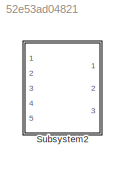
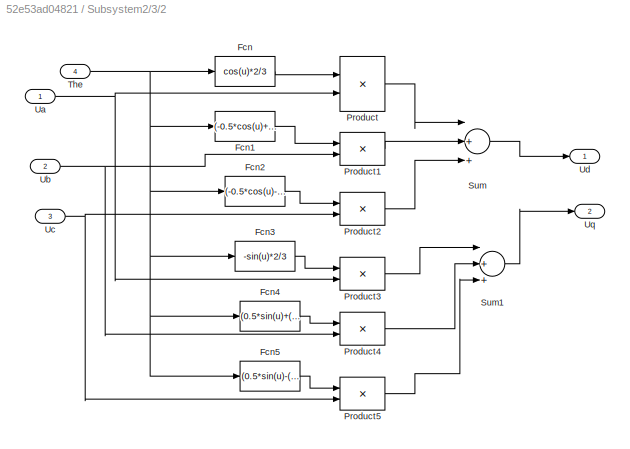
MODEL slx_52e53ad04821
KIND model
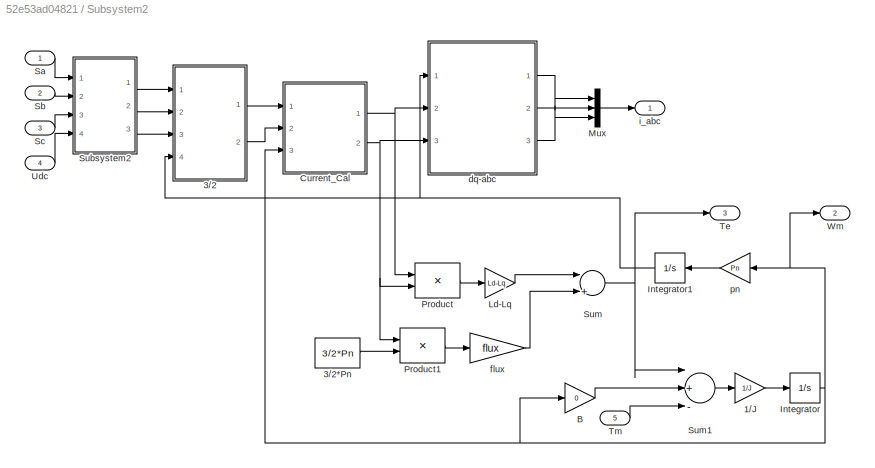
BLOCK [SubSystem] Subsystem2
  Ports = [5, 3]
  RequestExecContextInheritance = off
BLOCK [Gain] Subsystem2/1//J
  Gain = 1/J
BLOCK [SubSystem] Subsystem2/3//2
  Ports = [4, 2]
  RequestExecContextInheritance = off
BLOCK [Constant] Subsystem2/3//2*Pn
  Value = 3/2*Pn
BLOCK [Fcn] Subsystem2/3//2/Fcn
  Expr = cos(u)*2/3
BLOCK [Fcn] Subsystem2/3//2/Fcn1
  Expr = (-0.5*cos(u)+(sqrt(3)/2)*sin(u))*2/3
BLOCK [Fcn] Subsystem2/3//2/Fcn2
  Expr = (-0.5*cos(u)-(sqrt(3)/2)*sin(u))*2/3
BLOCK [Fcn] Subsystem2/3//2/Fcn3
  Expr = -sin(u)*2/3
BLOCK [Fcn] Subsystem2/3//2/Fcn4
  Expr = (0.5*sin(u)+(sqrt(3)/2)*cos(u))*2/3
BLOCK [Fcn] Subsystem2/3//2/Fcn5
  Expr = (0.5*sin(u)-(sqrt(3)/2)*cos(u))*2/3
BLOCK [Product] Subsystem2/3//2/Product
  InputSameDT = off
  Ports = [2, 1]
  RndMeth = Floor
BLOCK [Product] Subsystem2/3//2/Product1
  InputSameDT = off
  Ports = [2, 1]
  RndMeth = Floor
BLOCK [Product] Subsystem2/3//2/Product2
  InputSameDT = off
  Ports = [2, 1]
  RndMeth = Floor
BLOCK [Product] Subsystem2/3//2/Product3
  InputSameDT = off
  Ports = [2, 1]
  RndMeth = Floor
BLOCK [Product] Subsystem2/3//2/Product4
  InputSameDT = off
  Ports = [2, 1]
  RndMeth = Floor
BLOCK [Product] Subsystem2/3//2/Product5
  InputSameDT = off
  Ports = [2, 1]
  RndMeth = Floor
BLOCK [Sum] Subsystem2/3//2/Sum
  InputSameDT = off
  Inputs = |+++
  OutDataTypeStr = Inherit: Inherit via internal rule
  Ports = [3, 1]
BLOCK [Sum] Subsystem2/3//2/Sum1
  InputSameDT = off
  Inputs = |+++
  OutDataTypeStr = Inherit: Inherit via internal rule
  Ports = [3, 1]
BLOCK [Inport] Subsystem2/3//2/The
  IconDisplay = Port number
  Port = 4
BLOCK [Inport] Subsystem2/3//2/Ua
  IconDisplay = Port number
BLOCK [Inport] Subsystem2/3//2/Ub
  IconDisplay = Port number
  Port = 2
BLOCK [Inport] Subsystem2/3//2/Uc
  IconDisplay = Port number
  Port = 3
BLOCK [Outport] Subsystem2/3//2/Ud
  IconDisplay = Port number
BLOCK [Outport] Subsystem2/3//2/Uq
  IconDisplay = Port number
  Port = 2
BLOCK [Gain] Subsystem2/B
  Gain = 0
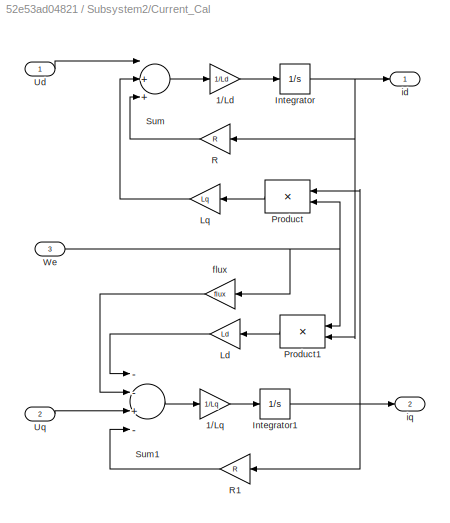
BLOCK [SubSystem] Subsystem2/Current_Cal
  Ports = [3, 2]
  RequestExecContextInheritance = off
BLOCK [Gain] Subsystem2/Current_Cal/1//Ld
  Gain = 1/Ld
BLOCK [Gain] Subsystem2/Current_Cal/1//Lq
  Gain = 1/Lq
BLOCK [Integrator] Subsystem2/Current_Cal/Integrator
  InitialCondition = 0.01
  Ports = [1, 1]
BLOCK [Integrator] Subsystem2/Current_Cal/Integrator1
  Ports = [1, 1]
BLOCK [Gain] Subsystem2/Current_Cal/Ld
  Gain = Ld
BLOCK [Gain] Subsystem2/Current_Cal/Lq
  Gain = Lq
BLOCK [Product] Subsystem2/Current_Cal/Product
  InputSameDT = off
  Ports = [2, 1]
  RndMeth = Floor
BLOCK [Product] Subsystem2/Current_Cal/Product1
  InputSameDT = off
  Ports = [2, 1]
  RndMeth = Floor
BLOCK [Gain] Subsystem2/Current_Cal/R
  Gain = R
BLOCK [Gain] Subsystem2/Current_Cal/R1
  Gain = R
BLOCK [Sum] Subsystem2/Current_Cal/Sum
  InputSameDT = off
  Inputs = |++-
  OutDataTypeStr = Inherit: Inherit via internal rule
  Ports = [3, 1]
BLOCK [Sum] Subsystem2/Current_Cal/Sum1
  InputSameDT = off
  Inputs = --+-
  OutDataTypeStr = Inherit: Inherit via internal rule
  Ports = [4, 1]
BLOCK [Inport] Subsystem2/Current_Cal/Ud
  IconDisplay = Port number
BLOCK [Inport] Subsystem2/Current_Cal/Uq
  IconDisplay = Port number
  Port = 2
BLOCK [Inport] Subsystem2/Current_Cal/We
  IconDisplay = Port number
  Port = 3
BLOCK [Gain] Subsystem2/Current_Cal/flux
  Gain = flux
BLOCK [Outport] Subsystem2/Current_Cal/id
  IconDisplay = Port number
BLOCK [Outport] Subsystem2/Current_Cal/iq
  IconDisplay = Port number
  Port = 2
BLOCK [Integrator] Subsystem2/Integrator
  Ports = [1, 1]
BLOCK [Integrator] Subsystem2/Integrator1
  Ports = [1, 1]
BLOCK [Gain] Subsystem2/Ld-Lq
  Gain = Ld-Lq
BLOCK [Mux] Subsystem2/Mux
  DisplayOption = bar
  Inputs = 3
  Ports = [3, 1]
BLOCK [Product] Subsystem2/Product
  InputSameDT = off
  Ports = [2, 1]
  RndMeth = Floor
BLOCK [Product] Subsystem2/Product1
  InputSameDT = off
  Ports = [2, 1]
  RndMeth = Floor
BLOCK [Inport] Subsystem2/Sa
  IconDisplay = Port number
BLOCK [Inport] Subsystem2/Sb
  IconDisplay = Port number
  Port = 2
BLOCK [Inport] Subsystem2/Sc
  IconDisplay = Port number
  Port = 3
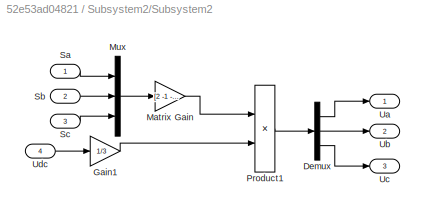
BLOCK [SubSystem] Subsystem2/Subsystem2
  Ports = [4, 3]
  RequestExecContextInheritance = off
BLOCK [Demux] Subsystem2/Subsystem2/Demux
  Outputs = 3
  Ports = [1, 3]
BLOCK [Gain] Subsystem2/Subsystem2/Gain1
  Gain = 1/3
BLOCK [Gain] Subsystem2/Subsystem2/Matrix Gain
  Gain = [2 -1 -1;-1 2 -1;-1 -1 2]
  Multiplication = Matrix(K*u)
BLOCK [Mux] Subsystem2/Subsystem2/Mux
  DisplayOption = bar
  Inputs = 3
  Ports = [3, 1]
BLOCK [Product] Subsystem2/Subsystem2/Product1
  InputSameDT = off
  Ports = [2, 1]
  RndMeth = Floor
BLOCK [Inport] Subsystem2/Subsystem2/Sa
  IconDisplay = Port number
BLOCK [Inport] Subsystem2/Subsystem2/Sb
  IconDisplay = Port number
  Port = 2
BLOCK [Inport] Subsystem2/Subsystem2/Sc
  IconDisplay = Port number
  Port = 3
BLOCK [Outport] Subsystem2/Subsystem2/Ua
  IconDisplay = Port number
BLOCK [Outport] Subsystem2/Subsystem2/Ub
  IconDisplay = Port number
  Port = 2
BLOCK [Outport] Subsystem2/Subsystem2/Uc
  IconDisplay = Port number
  Port = 3
BLOCK [Inport] Subsystem2/Subsystem2/Udc
  IconDisplay = Port number
  Port = 4
BLOCK [Sum] Subsystem2/Sum
  InputSameDT = off
  Inputs = |++
  OutDataTypeStr = Inherit: Inherit via internal rule
  Ports = [2, 1]
BLOCK [Sum] Subsystem2/Sum1
  InputSameDT = off
  Inputs = |+--
  OutDataTypeStr = Inherit: Inherit via internal rule
  Ports = [3, 1]
BLOCK [Outport] Subsystem2/Te
  IconDisplay = Port number
  Port = 3
BLOCK [Inport] Subsystem2/Tm
  IconDisplay = Port number
  Port = 5
BLOCK [Inport] Subsystem2/Udc
  IconDisplay = Port number
  Port = 4
BLOCK [Outport] Subsystem2/Wm
  IconDisplay = Port number
  Port = 2
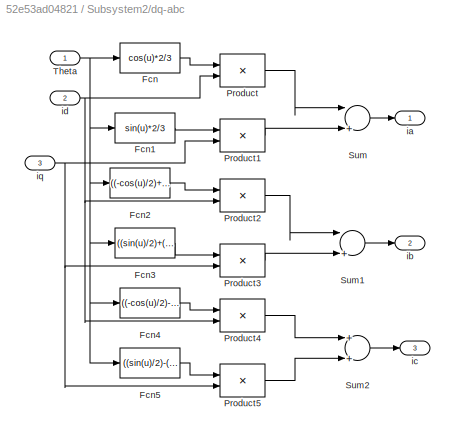
BLOCK [SubSystem] Subsystem2/dq-abc
  Ports = [3, 3]
  RequestExecContextInheritance = off
BLOCK [Fcn] Subsystem2/dq-abc/Fcn
  Expr = cos(u)*2/3
BLOCK [Fcn] Subsystem2/dq-abc/Fcn1
  Expr = sin(u)*2/3
BLOCK [Fcn] Subsystem2/dq-abc/Fcn2
  Expr = ((-cos(u)/2)+(sqrt(3)/2*sin(u)))*(2/3)
BLOCK [Fcn] Subsystem2/dq-abc/Fcn3
  Expr = ((sin(u)/2)+(sqrt(3)/2*cos(u)))*(2/3)
BLOCK [Fcn] Subsystem2/dq-abc/Fcn4
  Expr = ((-cos(u)/2)-(sqrt(3)/2*sin(u)))*(2/3)
BLOCK [Fcn] Subsystem2/dq-abc/Fcn5
  Expr = ((sin(u)/2)-(sqrt(3)/2*cos(u)))*(2/3)
BLOCK [Product] Subsystem2/dq-abc/Product
  InputSameDT = off
  Ports = [2, 1]
  RndMeth = Floor
BLOCK [Product] Subsystem2/dq-abc/Product1
  InputSameDT = off
  Ports = [2, 1]
  RndMeth = Floor
BLOCK [Product] Subsystem2/dq-abc/Product2
  InputSameDT = off
  Ports = [2, 1]
  RndMeth = Floor
BLOCK [Product] Subsystem2/dq-abc/Product3
  InputSameDT = off
  Ports = [2, 1]
  RndMeth = Floor
BLOCK [Product] Subsystem2/dq-abc/Product4
  InputSameDT = off
  Ports = [2, 1]
  RndMeth = Floor
BLOCK [Product] Subsystem2/dq-abc/Product5
  InputSameDT = off
  Ports = [2, 1]
  RndMeth = Floor
BLOCK [Sum] Subsystem2/dq-abc/Sum
  InputSameDT = off
  Inputs = |+-
  OutDataTypeStr = Inherit: Inherit via internal rule
  Ports = [2, 1]
BLOCK [Sum] Subsystem2/dq-abc/Sum1
  InputSameDT = off
  Inputs = |++
  OutDataTypeStr = Inherit: Inherit via internal rule
  Ports = [2, 1]
BLOCK [Sum] Subsystem2/dq-abc/Sum2
  InputSameDT = off
  OutDataTypeStr = Inherit: Inherit via internal rule
  Ports = [2, 1]
BLOCK [Inport] Subsystem2/dq-abc/Theta
  IconDisplay = Port number
BLOCK [Outport] Subsystem2/dq-abc/ia
  IconDisplay = Port number
BLOCK [Outport] Subsystem2/dq-abc/ib
  IconDisplay = Port number
  Port = 2
BLOCK [Outport] Subsystem2/dq-abc/ic
  IconDisplay = Port number
  Port = 3
BLOCK [Inport] Subsystem2/dq-abc/id
  IconDisplay = Port number
  Port = 2
BLOCK [Inport] Subsystem2/dq-abc/iq
  IconDisplay = Port number
  Port = 3
BLOCK [Gain] Subsystem2/flux
  Gain = flux
BLOCK [Outport] Subsystem2/i_abc
  IconDisplay = Port number
BLOCK [Gain] Subsystem2/pn
  Gain = Pn
LINE Subsystem2/1//J:1 -> Subsystem2/Integrator:1
LINE Subsystem2/3//2*Pn:1 -> Subsystem2/Product1:2
LINE Subsystem2/3//2/Fcn1:1 -> Subsystem2/3//2/Product1:1
LINE Subsystem2/3//2/Fcn2:1 -> Subsystem2/3//2/Product2:1
LINE Subsystem2/3//2/Fcn3:1 -> Subsystem2/3//2/Product3:1
LINE Subsystem2/3//2/Fcn4:1 -> Subsystem2/3//2/Product4:1
LINE Subsystem2/3//2/Fcn5:1 -> Subsystem2/3//2/Product5:1
LINE Subsystem2/3//2/Fcn:1 -> Subsystem2/3//2/Product:1
LINE Subsystem2/3//2/Product1:1 -> Subsystem2/3//2/Sum:2
LINE Subsystem2/3//2/Product2:1 -> Subsystem2/3//2/Sum:3
LINE Subsystem2/3//2/Product3:1 -> Subsystem2/3//2/Sum1:1
LINE Subsystem2/3//2/Product4:1 -> Subsystem2/3//2/Sum1:2
LINE Subsystem2/3//2/Product5:1 -> Subsystem2/3//2/Sum1:3
LINE Subsystem2/3//2/Product:1 -> Subsystem2/3//2/Sum:1
LINE Subsystem2/3//2/Sum1:1 -> Subsystem2/3//2/Uq:1
LINE Subsystem2/3//2/Sum:1 -> Subsystem2/3//2/Ud:1
NET Subsystem2/3//2/The:1 -> Subsystem2/3//2/Fcn1:1, Subsystem2/3//2/Fcn2:1, Subsystem2/3//2/Fcn3:1, Subsystem2/3//2/Fcn4:1, Subsystem2/3//2/Fcn5:1, Subsystem2/3//2/Fcn:1
NET Subsystem2/3//2/Ua:1 -> Subsystem2/3//2/Product3:2, Subsystem2/3//2/Product:2
NET Subsystem2/3//2/Ub:1 -> Subsystem2/3//2/Product1:2, Subsystem2/3//2/Product4:2
NET Subsystem2/3//2/Uc:1 -> Subsystem2/3//2/Product2:2, Subsystem2/3//2/Product5:2
LINE Subsystem2/3//2:1 -> Subsystem2/Current_Cal:1
LINE Subsystem2/3//2:2 -> Subsystem2/Current_Cal:2
LINE Subsystem2/B:1 -> Subsystem2/Sum1:2
LINE Subsystem2/Current_Cal/1//Ld:1 -> Subsystem2/Current_Cal/Integrator:1
LINE Subsystem2/Current_Cal/1//Lq:1 -> Subsystem2/Current_Cal/Integrator1:1
NET Subsystem2/Current_Cal/Integrator1:1 -> Subsystem2/Current_Cal/Product:1, Subsystem2/Current_Cal/R1:1, Subsystem2/Current_Cal/iq:1
NET Subsystem2/Current_Cal/Integrator:1 -> Subsystem2/Current_Cal/Product1:2, Subsystem2/Current_Cal/R:1, Subsystem2/Current_Cal/id:1
LINE Subsystem2/Current_Cal/Ld:1 -> Subsystem2/Current_Cal/Sum1:1
LINE Subsystem2/Current_Cal/Lq:1 -> Subsystem2/Current_Cal/Sum:2
LINE Subsystem2/Current_Cal/Product1:1 -> Subsystem2/Current_Cal/Ld:1
LINE Subsystem2/Current_Cal/Product:1 -> Subsystem2/Current_Cal/Lq:1
LINE Subsystem2/Current_Cal/R1:1 -> Subsystem2/Current_Cal/Sum1:4
LINE Subsystem2/Current_Cal/R:1 -> Subsystem2/Current_Cal/Sum:3
LINE Subsystem2/Current_Cal/Sum1:1 -> Subsystem2/Current_Cal/1//Lq:1
LINE Subsystem2/Current_Cal/Sum:1 -> Subsystem2/Current_Cal/1//Ld:1
LINE Subsystem2/Current_Cal/Ud:1 -> Subsystem2/Current_Cal/Sum:1
LINE Subsystem2/Current_Cal/Uq:1 -> Subsystem2/Current_Cal/Sum1:3
NET Subsystem2/Current_Cal/We:1 -> Subsystem2/Current_Cal/Product1:1, Subsystem2/Current_Cal/Product:2, Subsystem2/Current_Cal/flux:1
LINE Subsystem2/Current_Cal/flux:1 -> Subsystem2/Current_Cal/Sum1:2
NET Subsystem2/Current_Cal:1 -> Subsystem2/Product:1, Subsystem2/dq-abc:2
NET Subsystem2/Current_Cal:2 -> Subsystem2/Product1:1, Subsystem2/Product:2, Subsystem2/dq-abc:3
NET Subsystem2/Integrator1:1 -> Subsystem2/3//2:4, Subsystem2/dq-abc:1
NET Subsystem2/Integrator:1 -> Subsystem2/B:1, Subsystem2/Current_Cal:3, Subsystem2/Wm:1, Subsystem2/pn:1
LINE Subsystem2/Ld-Lq:1 -> Subsystem2/Sum:1
LINE Subsystem2/Mux:1 -> Subsystem2/i_abc:1
LINE Subsystem2/Product1:1 -> Subsystem2/flux:1
LINE Subsystem2/Product:1 -> Subsystem2/Ld-Lq:1
LINE Subsystem2/Sa:1 -> Subsystem2/Subsystem2:1
LINE Subsystem2/Sb:1 -> Subsystem2/Subsystem2:2
LINE Subsystem2/Sc:1 -> Subsystem2/Subsystem2:3
LINE Subsystem2/Subsystem2/Demux:1 -> Subsystem2/Subsystem2/Ua:1
LINE Subsystem2/Subsystem2/Demux:2 -> Subsystem2/Subsystem2/Ub:1
LINE Subsystem2/Subsystem2/Demux:3 -> Subsystem2/Subsystem2/Uc:1
LINE Subsystem2/Subsystem2/Gain1:1 -> Subsystem2/Subsystem2/Product1:2
LINE Subsystem2/Subsystem2/Matrix Gain:1 -> Subsystem2/Subsystem2/Product1:1
LINE Subsystem2/Subsystem2/Mux:1 -> Subsystem2/Subsystem2/Matrix Gain:1
LINE Subsystem2/Subsystem2/Product1:1 -> Subsystem2/Subsystem2/Demux:1
LINE Subsystem2/Subsystem2/Sa:1 -> Subsystem2/Subsystem2/Mux:1
LINE Subsystem2/Subsystem2/Sb:1 -> Subsystem2/Subsystem2/Mux:2
LINE Subsystem2/Subsystem2/Sc:1 -> Subsystem2/Subsystem2/Mux:3
LINE Subsystem2/Subsystem2/Udc:1 -> Subsystem2/Subsystem2/Gain1:1
LINE Subsystem2/Subsystem2:1 -> Subsystem2/3//2:1
LINE Subsystem2/Subsystem2:2 -> Subsystem2/3//2:2
LINE Subsystem2/Subsystem2:3 -> Subsystem2/3//2:3
LINE Subsystem2/Sum1:1 -> Subsystem2/1//J:1
NET Subsystem2/Sum:1 -> Subsystem2/Sum1:1, Subsystem2/Te:1
LINE Subsystem2/Tm:1 -> Subsystem2/Sum1:3
LINE Subsystem2/Udc:1 -> Subsystem2/Subsystem2:4
LINE Subsystem2/dq-abc/Fcn1:1 -> Subsystem2/dq-abc/Product1:1
LINE Subsystem2/dq-abc/Fcn2:1 -> Subsystem2/dq-abc/Product2:1
LINE Subsystem2/dq-abc/Fcn3:1 -> Subsystem2/dq-abc/Product3:1
LINE Subsystem2/dq-abc/Fcn4:1 -> Subsystem2/dq-abc/Product4:1
LINE Subsystem2/dq-abc/Fcn5:1 -> Subsystem2/dq-abc/Product5:1
LINE Subsystem2/dq-abc/Fcn:1 -> Subsystem2/dq-abc/Product:1
LINE Subsystem2/dq-abc/Product1:1 -> Subsystem2/dq-abc/Sum:2
LINE Subsystem2/dq-abc/Product2:1 -> Subsystem2/dq-abc/Sum1:1
LINE Subsystem2/dq-abc/Product3:1 -> Subsystem2/dq-abc/Sum1:2
LINE Subsystem2/dq-abc/Product4:1 -> Subsystem2/dq-abc/Sum2:1
LINE Subsystem2/dq-abc/Product5:1 -> Subsystem2/dq-abc/Sum2:2
LINE Subsystem2/dq-abc/Product:1 -> Subsystem2/dq-abc/Sum:1
LINE Subsystem2/dq-abc/Sum1:1 -> Subsystem2/dq-abc/ib:1
LINE Subsystem2/dq-abc/Sum2:1 -> Subsystem2/dq-abc/ic:1
LINE Subsystem2/dq-abc/Sum:1 -> Subsystem2/dq-abc/ia:1
NET Subsystem2/dq-abc/Theta:1 -> Subsystem2/dq-abc/Fcn1:1, Subsystem2/dq-abc/Fcn2:1, Subsystem2/dq-abc/Fcn3:1, Subsystem2/dq-abc/Fcn4:1, Subsystem2/dq-abc/Fcn5:1, Subsystem2/dq-abc/Fcn:1
NET Subsystem2/dq-abc/id:1 -> Subsystem2/dq-abc/Product2:2, Subsystem2/dq-abc/Product4:2, Subsystem2/dq-abc/Product:2
NET Subsystem2/dq-abc/iq:1 -> Subsystem2/dq-abc/Product1:2, Subsystem2/dq-abc/Product3:2, Subsystem2/dq-abc/Product5:2
LINE Subsystem2/dq-abc:1 -> Subsystem2/Mux:1
LINE Subsystem2/dq-abc:2 -> Subsystem2/Mux:2
LINE Subsystem2/dq-abc:3 -> Subsystem2/Mux:3
LINE Subsystem2/flux:1 -> Subsystem2/Sum:2
LINE Subsystem2/pn:1 -> Subsystem2/Integrator1:1
note: NET lines group one-source signal fan-out (src -> all destinations, sorted); 1:1 wires keep LINE
